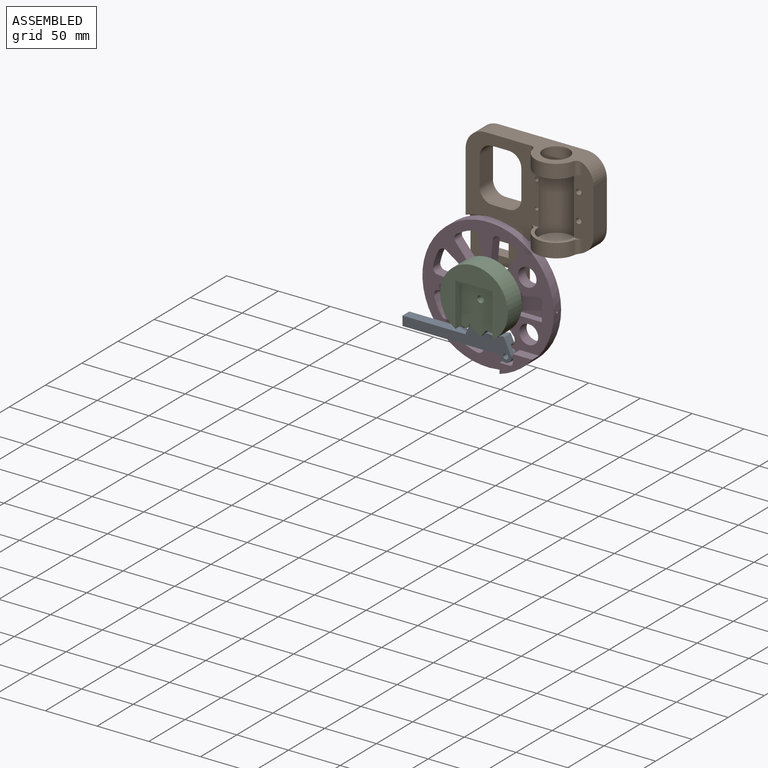
[diagram: assembled view]
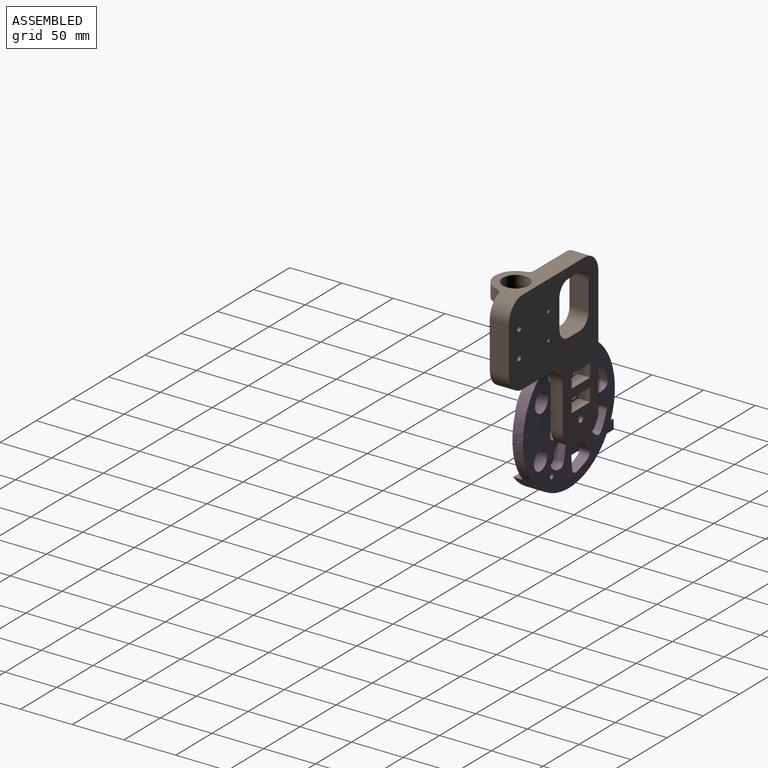
[diagram: assembled view, second angle]
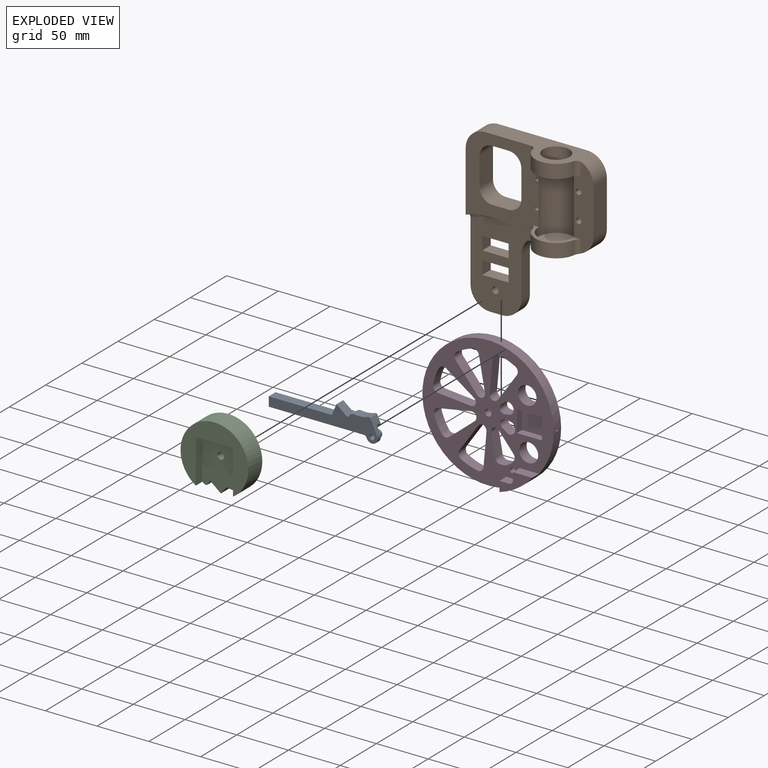
[diagram: exploded view]
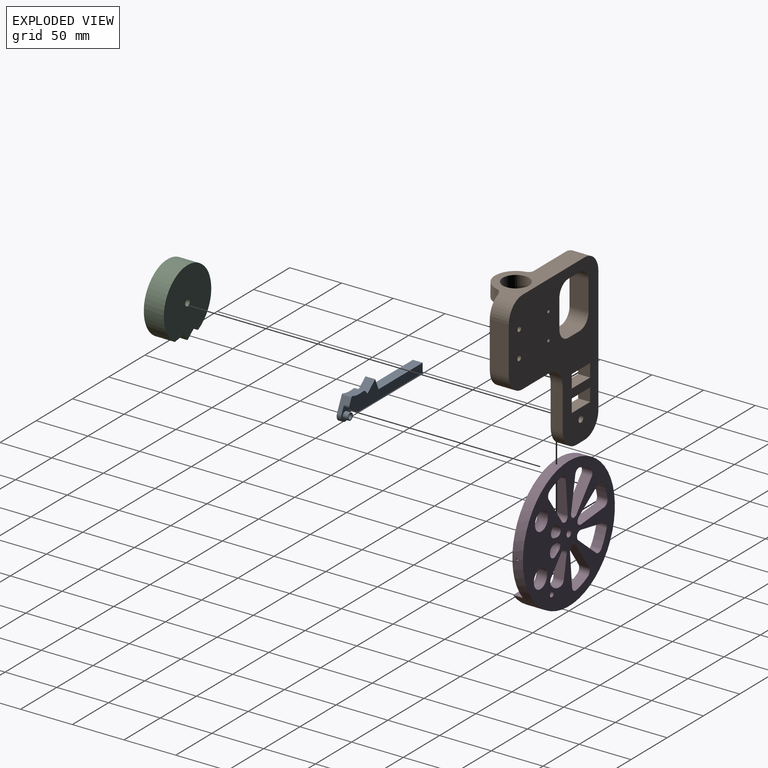
[diagram: exploded view, second angle]
ASSEMBLY  parts=4 mates=3
PART A: 21 faces, bbox 105.3x25.2x9.4 mm
  f0: plane 92.07x9.4mm, normal (0,-1,0), area 853.5mm2, adj f1,f2,f11,f12,f13,f17
  f1: plane 105.3x25.22mm, normal (0,0,-1), area 1209.4mm2, adj f0,f2,f3,f5,f6,f7,f8,f9
  f2: plane 9.4x9.08mm, normal (1,0,0), area 85.3mm2, adj f0,f1,f11,f20
  f3: cylinder r=5.55mm len=10.82mm, axis (0,0,-1), area 79.6mm2, adj f1,f5,f12,f17
  f4: plane 6.9x6.9mm, normal (0,0,1), area 17.8mm2, adj f9,f15
  f5: plane 13.74x9.4mm, normal (-0.9,0.43,0), area 100.4mm2, adj f1,f3,f11,f12,f16,f19
  f6: plane 10.59x9.4mm, normal (0.92,0.4,0), area 108.7mm2, adj f1,f7,f11,f20
  f7: plane 10.74x9.4mm, normal (-0.63,0.78,0), area 129.4mm2, adj f1,f6,f8,f11
  f8: plane 9.4x2.44mm, normal (0.78,0.63,0), area 29.4mm2, adj f1,f7,f11,f18
  f9: cylinder r=2.5mm len=9.4mm, axis (0,0,-1), area 147.6mm2, adj f1,f4
  f10: cylinder r=29.21mm len=13.89mm, axis (0,0,-1), area 132.5mm2, adj f1,f11,f18,f19
  f11: plane 101.4x19.67mm, normal (0,0,1), area 1107.8mm2, adj f0,f2,f5,f6,f7,f8,f10,f13
  f12: plane 15.58x15.58mm, normal (0,0,1), area 83.9mm2, adj f0,f3,f5,f13,f14,f15,f16,f17
  f13: plane 5.89x5mm, normal (-0.64,-0.77,0), area 38.4mm2, adj f0,f11,f12,f14
  f14: cylinder r=6.45mm len=5mm, axis (0,0,1), area 19.3mm2, adj f11,f12,f13,f16
  f15: cylinder r=3.45mm len=6.9mm, axis (0,0,1), area 108.4mm2, adj f4,f12
  f16: cylinder r=2.54mm len=5mm, axis (0,0,1), area 24.3mm2, adj f5,f11,f12,f14
  f17: cylinder r=2.54mm len=4.4mm, axis (0,0,-1), area 14mm2, adj f0,f1,f3,f12
  f18: cylinder r=5.08mm len=9.4mm, axis (0,0,-1), area 49.5mm2, adj f1,f8,f10,f11
  f19: cylinder r=1.27mm len=9.4mm, axis (0,0,-1), area 17.6mm2, adj f1,f5,f10,f11
  f20: plane 60.81x9.4mm, normal (0,1,0), area 571.5mm2, adj f1,f2,f6,f11
PART B: 51 faces, bbox 127.8x159.5x38.6 mm
  f0: plane 11.62x11.24mm, normal (0,1,0), area 130.6mm2, adj f25,f40,f42,f50
  f1: cylinder r=3.25mm len=11.62mm, axis (0,0,1), area 237.3mm2, adj f25,f50
  f2: plane 38.56x36.41mm, normal (0,1,0), area 1278.3mm2, adj f20,f30,f37,f44,f50
  f3: plane 38.94x11.62mm, normal (-1,0,0), area 452.5mm2, adj f20,f25,f42,f50
  f4: plane 18.36x15.77mm, normal (0,1,0), area 289.5mm2, adj f21,f24,f26,f50
  f5: plane 27.03x18.36mm, normal (-1,0,0), area 496.4mm2, adj f21,f22,f26,f50
  f6: plane 18.36x15.77mm, normal (0,-1,0), area 289.5mm2, adj f22,f23,f26,f50
  f7: plane 27.03x18.36mm, normal (1,0,0), area 496.4mm2, adj f23,f24,f26,f50
  f8: plane 25.4x11.62mm, normal (0,1,0), area 295.1mm2, adj f9,f11,f25,f50
  f9: plane 12.7x11.62mm, normal (-1,0,0), area 147.6mm2, adj f8,f10,f25,f50
  f10: plane 25.4x11.62mm, normal (0,-1,0), area 295.1mm2, adj f9,f11,f25,f50
  f11: plane 12.7x11.62mm, normal (1,0,0), area 147.6mm2, adj f8,f10,f25,f50
  f12: plane 12.7x11.62mm, normal (-1,0,0), area 147.6mm2, adj f13,f15,f25,f50
  f13: plane 25.4x11.62mm, normal (0,-1,0), area 295.1mm2, adj f12,f14,f25,f50
  f14: plane 12.7x11.62mm, normal (1,0,0), area 147.6mm2, adj f13,f15,f25,f50
  f15: plane 25.4x11.62mm, normal (0,1,0), area 295.1mm2, adj f12,f14,f25,f50
  f16: cylinder r=2.54mm len=18.36mm, axis (0,0,1), area 293.1mm2, adj f33,f50
  f17: cylinder r=2.54mm len=18.36mm, axis (0,0,1), area 293.1mm2, adj f33,f50
  f18: cylinder r=1.59mm len=18.36mm, axis (0,0,1), area 183.2mm2, adj f26,f50
  f19: cylinder r=1.59mm len=18.36mm, axis (0,0,1), area 183.2mm2, adj f26,f50
  f20: cylinder r=19.01mm len=24.12mm, axis (0,0,-1), area 409.8mm2, adj f2,f3,f25,f26,f28,f30,f45,f47
  f21: cylinder r=12.26mm len=18.36mm, axis (0,0,1), area 353.8mm2, adj f4,f5,f26,f50
  f22: cylinder r=12.26mm len=18.36mm, axis (0,0,-1), area 353.8mm2, adj f5,f6,f26,f50
  f23: cylinder r=12.26mm len=18.36mm, axis (0,0,1), area 353.8mm2, adj f6,f7,f26,f50
  f24: cylinder r=12.26mm len=18.36mm, axis (0,0,-1), area 353.8mm2, adj f4,f7,f26,f50
  f25: plane 81.74x56.25mm, normal (0,0,1), area 3154.6mm2, adj f0,f1,f3,f8,f9,f10,f11,f12
  f26: plane 83.93x70.6mm, normal (0,0,1), area 3148.5mm2, adj f4,f5,f6,f7,f18,f19,f20,f21
  f27: plane 85.66x38.56mm, normal (0,-1,0), area 1687.9mm2, adj f26,f29,f39,f41,f43,f49,f50
  f28: cylinder r=66.63mm len=61.15mm, axis (0,0,1), area 106.6mm2, adj f20,f26,f38,f45
  f29: cylinder r=20.19mm len=39.56mm, axis (0,1,0), area 734.8mm2, adj f27,f32,f43,f46,f49
  f30: cylinder r=20.19mm len=39.56mm, axis (0,1,0), area 737.7mm2, adj f2,f20,f34,f44,f47,f48
  f31: cylinder r=17.02mm len=64.16mm, axis (0,1,0), area 3873mm2, adj f26,f32,f33,f34,f36
  f32: plane 49.51x37.21mm, normal (0,1,0), area 596.6mm2, adj f26,f29,f31,f33,f39,f46,f49
  f33: plane 79.29x19.04mm, normal (0,0,1), area 1178.3mm2, adj f16,f17,f31,f32,f34,f35,f43,f44
  f34: plane 49.51x20.19mm, normal (0,-1,0), area 193.5mm2, adj f26,f30,f31,f33,f47,f48
  f35: plane 44.53x18.36mm, normal (-1,0,0), area 817.8mm2, adj f33,f43,f44,f50
  f36: plane 34.04x34.04mm, normal (0,-1,0), area 905.3mm2, adj f31,f37
  f37: cylinder r=1.2mm len=5.08mm, axis (0,1,0), area 38.3mm2, adj f2,f36
  f38: plane 121.49x18.36mm, normal (1,0,0), area 1810.2mm2, adj f25,f26,f28,f40,f41,f45,f50
  f39: cylinder r=12.7mm len=25.4mm, axis (0,-1,0), area 1062mm2, adj f27,f32
  f40: cylinder r=19.01mm len=19.01mm, axis (0,0,-1), area 346.9mm2, adj f0,f25,f38,f50
  f41: cylinder r=19.01mm len=19.01mm, axis (0,0,-1), area 548.4mm2, adj f26,f27,f38,f50
  f42: cylinder r=19.01mm len=19.01mm, axis (0,0,-1), area 346.9mm2, adj f0,f3,f25,f50
  f43: cylinder r=19.01mm len=29.18mm, axis (0,0,1), area 575.5mm2, adj f27,f29,f33,f35,f46,f50
  f44: cylinder r=19.01mm len=29.18mm, axis (0,0,-1), area 575.5mm2, adj f2,f30,f33,f35,f48,f50
  f45: torus R=61.55mm, axis (0,0,1), area 493.7mm2, adj f20,f25,f28,f38
  f46: cylinder r=5.08mm len=13.11mm, axis (0,1,0), area 87.9mm2, adj f29,f32,f33,f43
  f47: cylinder r=5.08mm len=14.15mm, axis (0,1,0), area 94.4mm2, adj f20,f26,f30,f34
  f48: cylinder r=5.08mm len=13.16mm, axis (0,1,0), area 88.2mm2, adj f30,f33,f34,f44
  f49: cylinder r=5.08mm len=13.31mm, axis (0,1,0), area 92.5mm2, adj f26,f27,f29,f32
  f50: plane 159.51x123.68mm, normal (0,0,-1), area 11007.5mm2, adj f0,f1,f2,f3,f4,f5,f6,f7
PART C: 13 faces, bbox 65.5x65.5x19.4 mm
  f0: cylinder r=3.22mm len=10.47mm, axis (0,0,-1), area 211.7mm2, adj f8,f12
  f1: cylinder r=32.77mm len=65.54mm, axis (0,0,-1), area 3284.6mm2, adj f2,f5,f7,f8,f9,f10,f12
  f2: plane 65.54x60.15mm, normal (0,0,1), area 1716.1mm2, adj f1,f9,f10,f11
  f3: plane 10.64x10.47mm, normal (-0.63,-0.78,0), area 142.7mm2, adj f4,f6,f8,f12
  f4: plane 10.47x3.36mm, normal (0.92,-0.4,0), area 38.4mm2, adj f3,f7,f8,f12
  f5: plane 11.96x10.47mm, normal (-0.15,-0.99,0), area 126.7mm2, adj f1,f6,f8,f12
  f6: plane 10.47x6.86mm, normal (0.78,-0.63,0), area 92.1mm2, adj f3,f5,f8,f12
  f7: cylinder r=2.51mm len=10.47mm, axis (0,0,-1), area 43.6mm2, adj f1,f4,f8,f12
  f8: plane 65.54x65.54mm, normal (0,0,-1), area 3230.1mm2, adj f0,f1,f3,f4,f5,f6,f7
  f9: plane 42.38x8.89mm, normal (1,0,0), area 376.8mm2, adj f1,f2,f11,f12
  f10: plane 42.38x8.89mm, normal (-1,0,0), area 376.8mm2, adj f1,f2,f11,f12
  f11: plane 36x8.89mm, normal (0,-1,0), area 320mm2, adj f2,f9,f10,f12
  f12: plane 47.77x36mm, normal (0,0,1), area 1514mm2, adj f0,f1,f3,f4,f5,f6,f7,f9
PART D: 77 faces, bbox 127x19.6x127 mm
  f0: plane 127x127mm, normal (0,-1,0), area 7182.9mm2, adj f3,f5,f6,f7,f8,f9,f10,f11
  f1: cylinder r=1.2mm len=11.46mm, axis (1,0,0), area 86.4mm2, adj f3,f72
  f2: plane 127x127mm, normal (0,1,0), area 7943.1mm2, adj f3,f5,f6,f14,f15,f16,f17,f18
  f3: cylinder r=63.5mm len=127mm, axis (0,1,0), area 4049.3mm2, adj f0,f1,f2,f4
  f4: plane 31.53x20.83mm, normal (0,-1,0), area 0.8mm2, adj f3,f12
  f5: cylinder r=3.25mm len=10.16mm, axis (0,-1,0), area 207.5mm2, adj f0,f2
  f6: cylinder r=2.5mm len=10.16mm, axis (0,1,0), area 159.6mm2, adj f0,f2
  f7: plane 18.63x9.4mm, normal (0,0,-1), area 175.1mm2, adj f0,f8,f12,f13
  f8: plane 9.4x7.5mm, normal (1,0,0), area 70.5mm2, adj f0,f7,f9,f13
  f9: cylinder r=3.5mm len=9.4mm, axis (0,-1,0), area 51.7mm2, adj f0,f8,f10,f13
  f10: plane 9.4x9.4mm, normal (0,0,-1), area 88.4mm2, adj f0,f9,f11,f13
  f11: plane 9.83x9.4mm, normal (1,0,0), area 92.4mm2, adj f0,f10,f12,f13
  f12: cylinder r=64.21mm len=31.53mm, axis (0,-1,0), area 360.5mm2, adj f4,f7,f11,f13
  f13: plane 31.53x20.83mm, normal (0,-1,0), area 261.1mm2, adj f7,f8,f9,f10,f11,f12
  f14: plane 24.5x20.42mm, normal (-0.77,0,-0.64), area 324mm2, adj f0,f2,f66,f69
  f15: cylinder r=54.27mm len=15mm, axis (0,1,0), area 168.9mm2, adj f0,f2,f68,f69
  f16: plane 31.37x10.16mm, normal (0.98,0,0.18), area 324mm2, adj f0,f2,f67,f68
  f17: plane 10.16x3.82mm, normal (0.18,0,-0.98), area 39.4mm2, adj f0,f2,f38,f40
  f18: plane 10.16x3mm, normal (-0.64,0,0.77), area 39.7mm2, adj f0,f2,f39,f41
  f19: cylinder r=8.63mm len=10.16mm, axis (0,1,0), area 19.7mm2, adj f0,f2,f38,f39
  f20: plane 20.98x10.16mm, normal (-0.98,0,-0.18), area 216.7mm2, adj f0,f2,f46,f48
  f21: plane 16.33x13.61mm, normal (0.77,0,0.64), area 216mm2, adj f0,f2,f47,f49
  f22: cylinder r=14.26mm len=13.5mm, axis (0,1,0), area 160mm2, adj f0,f2,f46,f47
  f23: plane 10.16x4.04mm, normal (-0.57,0,-0.82), area 49.8mm2, adj f0,f2,f42,f44
  f24: plane 10.16x4.44mm, normal (0.09,0,1), area 45.3mm2, adj f0,f2,f43,f45
  f25: cylinder r=12.36mm len=10.16mm, axis (0,1,0), area 22mm2, adj f0,f2,f42,f43
  f26: plane 31.37x10.16mm, normal (-0.18,0,0.98), area 324mm2, adj f0,f2,f54,f56
  f27: plane 24.5x20.42mm, normal (0.64,0,-0.77), area 324mm2, adj f0,f2,f55,f57
  f28: cylinder r=54.27mm len=15mm, axis (0,1,0), area 168.9mm2, adj f0,f2,f54,f55
  f29: plane 26.25x18.11mm, normal (-0.82,0,0.57), area 324mm2, adj f0,f2,f50,f52
  f30: plane 31.76x10.16mm, normal (1,0,-0.09), area 324mm2, adj f0,f2,f51,f53
  f31: cylinder r=54.27mm len=15.57mm, axis (0,1,0), area 168.9mm2, adj f0,f2,f50,f51
  f32: plane 26.25x18.11mm, normal (0.57,0,0.82), area 324mm2, adj f0,f2,f58,f60
  f33: plane 31.76x10.16mm, normal (-0.09,0,-1), area 324mm2, adj f0,f2,f59,f61
  f34: cylinder r=54.27mm len=15.57mm, axis (0,1,0), area 168.9mm2, adj f0,f2,f58,f59
  f35: plane 26.25x18.11mm, normal (0.82,0,-0.57), area 324mm2, adj f0,f2,f63,f65
  f36: plane 31.76x10.16mm, normal (-1,0,0.09), area 324mm2, adj f0,f2,f62,f64
  f37: cylinder r=54.27mm len=15.57mm, axis (0,1,0), area 168.9mm2, adj f0,f2,f64,f65
  f38: cylinder r=5.08mm len=10.16mm, axis (0,1,0), area 86.9mm2, adj f0,f2,f17,f19
  f39: cylinder r=5.08mm len=10.16mm, axis (0,1,0), area 90.1mm2, adj f0,f2,f18,f19
  f40: cylinder r=5.08mm len=10.16mm, axis (0,1,0), area 61.8mm2, adj f0,f2,f17,f41
  f41: cylinder r=5.08mm len=10.16mm, axis (0,1,0), area 61.8mm2, adj f0,f2,f18,f40
  f42: cylinder r=5.08mm len=10.16mm, axis (0,1,0), area 107.6mm2, adj f0,f2,f23,f25
  f43: cylinder r=5.08mm len=10.16mm, axis (0,1,0), area 72mm2, adj f0,f2,f24,f25
  f44: cylinder r=5.08mm len=10.16mm, axis (0,1,0), area 61.8mm2, adj f0,f2,f23,f45
  f45: cylinder r=5.08mm len=10.16mm, axis (0,1,0), area 61.8mm2, adj f0,f2,f24,f44
  f46: cylinder r=5.08mm len=10.16mm, axis (0,1,0), area 66.2mm2, adj f0,f2,f20,f22
  f47: cylinder r=5.08mm len=10.16mm, axis (0,1,0), area 65.4mm2, adj f0,f2,f21,f22
  f48: cylinder r=5.08mm len=10.16mm, axis (0,1,0), area 61.8mm2, adj f0,f2,f20,f49
  f49: cylinder r=5.08mm len=10.16mm, axis (0,1,0), area 61.8mm2, adj f0,f2,f21,f48
  f50: cylinder r=5.08mm len=10.16mm, axis (0,1,0), area 86.4mm2, adj f0,f2,f29,f31
  f51: cylinder r=5.08mm len=10.16mm, axis (0,1,0), area 86.4mm2, adj f0,f2,f30,f31
  f52: cylinder r=5.08mm len=10.16mm, axis (0,1,0), area 61.8mm2, adj f0,f2,f29,f53
  f53: cylinder r=5.08mm len=10.16mm, axis (0,1,0), area 61.8mm2, adj f0,f2,f30,f52
  f54: cylinder r=5.08mm len=10.16mm, axis (0,1,0), area 86.4mm2, adj f0,f2,f26,f28
  f55: cylinder r=5.08mm len=10.16mm, axis (0,1,0), area 86.4mm2, adj f0,f2,f27,f28
  f56: cylinder r=5.08mm len=10.16mm, axis (0,1,0), area 61.8mm2, adj f0,f2,f26,f57
  f57: cylinder r=5.08mm len=10.16mm, axis (0,1,0), area 61.8mm2, adj f0,f2,f27,f56
  f58: cylinder r=5.08mm len=10.16mm, axis (0,1,0), area 86.4mm2, adj f0,f2,f32,f34
  f59: cylinder r=5.08mm len=10.16mm, axis (0,1,0), area 86.4mm2, adj f0,f2,f33,f34
  f60: cylinder r=5.08mm len=10.16mm, axis (0,1,0), area 61.8mm2, adj f0,f2,f32,f61
  f61: cylinder r=5.08mm len=10.16mm, axis (0,1,0), area 61.8mm2, adj f0,f2,f33,f60
  f62: cylinder r=5.08mm len=10.16mm, axis (0,1,0), area 61.8mm2, adj f0,f2,f36,f63
  f63: cylinder r=5.08mm len=10.16mm, axis (0,1,0), area 61.8mm2, adj f0,f2,f35,f62
  f64: cylinder r=5.08mm len=10.16mm, axis (0,1,0), area 86.4mm2, adj f0,f2,f36,f37
  f65: cylinder r=5.08mm len=10.16mm, axis (0,1,0), area 86.4mm2, adj f0,f2,f35,f37
  f66: cylinder r=5.08mm len=10.16mm, axis (0,1,0), area 61.8mm2, adj f0,f2,f14,f67
  f67: cylinder r=5.08mm len=10.16mm, axis (0,1,0), area 61.8mm2, adj f0,f2,f16,f66
  f68: cylinder r=5.08mm len=10.16mm, axis (0,1,0), area 86.4mm2, adj f0,f2,f15,f16
  f69: cylinder r=5.08mm len=10.16mm, axis (0,1,0), area 86.4mm2, adj f0,f2,f14,f15
  f70: cylinder r=9.16mm len=18.31mm, axis (0,1,0), area 584.4mm2, adj f0,f2
  f71: cylinder r=8.9mm len=17.79mm, axis (0,1,0), area 567.8mm2, adj f0,f2
  f72: plane 20.54x7.09mm, normal (1,0,0), area 141mm2, adj f0,f1,f73,f75,f76
  f73: plane 24.26x7.09mm, normal (0,0,-1), area 171.9mm2, adj f0,f72,f74,f76
  f74: plane 20.54x7.09mm, normal (-1,0,0), area 145.6mm2, adj f0,f73,f75,f76
  f75: plane 24.26x7.09mm, normal (0,0,1), area 171.9mm2, adj f0,f72,f74,f76
  f76: plane 24.26x20.54mm, normal (0,-1,0), area 498.3mm2, adj f72,f73,f74,f75
PLACE A rot(axis=(0,-0.71,-0.71),180deg) t=(0,-19.56,-33.1)mm
PLACE B rot(axis=(0,-0.71,0.71),180deg) t=(63.5,-6.75,56.78)mm
PLACE C rot(axis=(1,0,0),90deg) t=(0,-20.32,0)mm
PLACE D rot(axis=(0,1,0),180deg) t=(0,0,0)mm
MATE cylindrical C.f0 <-> D.f37  axis (0,1,0) through (0,-10.26,0)mm
MATE cylindrical A.f3 <-> D.f6  axis (0,-1,0) through (23.55,-10.16,-44.17)mm
MATE cylindrical B.f1 <-> D.f37  axis (0,-1,0) through (0,0,0)mm
